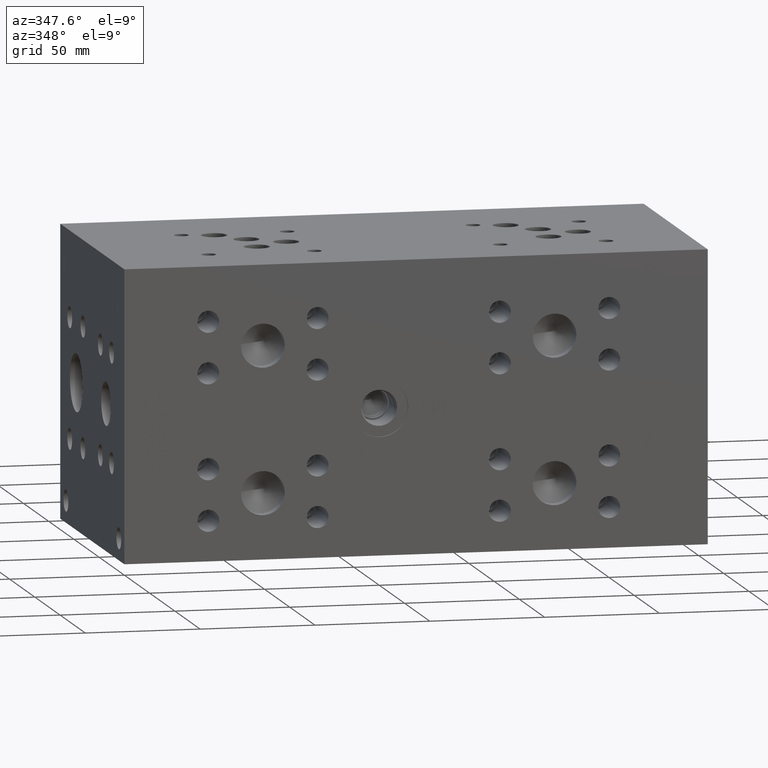
[diagram: clean part render]
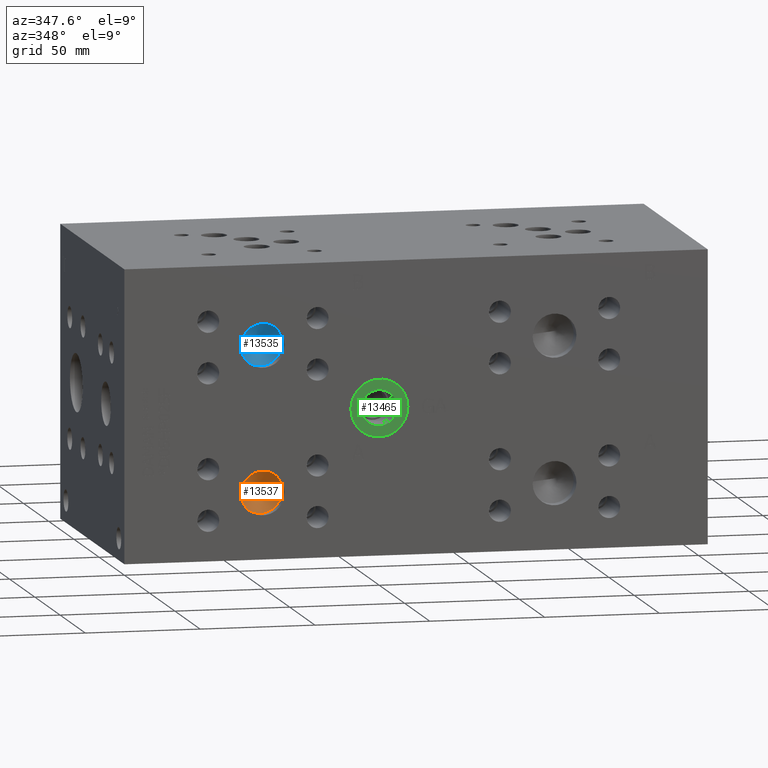
[diagram: same view with three faces highlighted in distinct colors, each labeled with its STEP entity id]
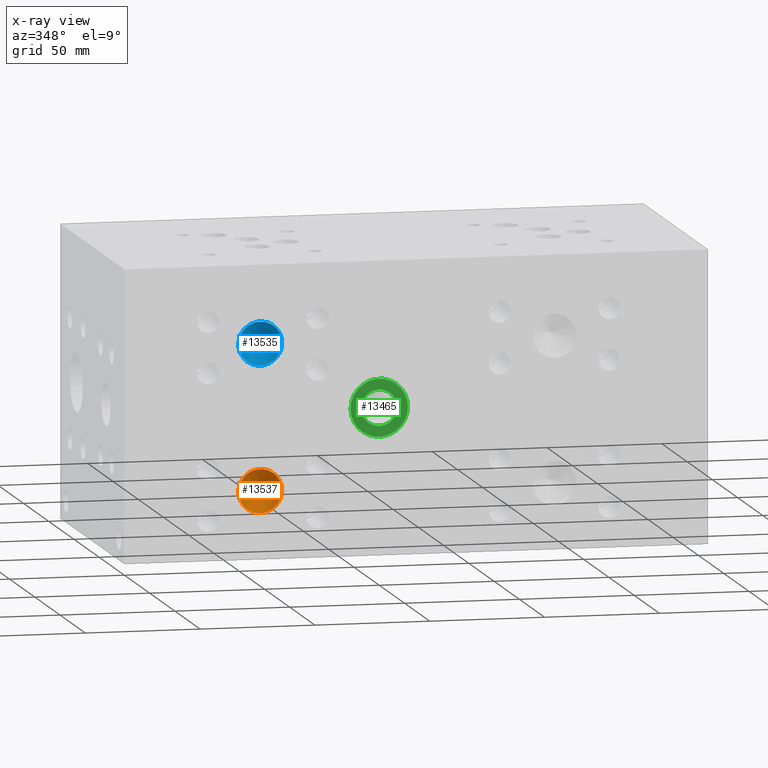
[diagram: x-ray of the same camera — body ghosted, the three highlighted faces saturated]
A machine part, auxiliary view with three faces highlighted in distinct colors.
The next image is the same camera in x-ray (body ghosted, the three faces saturated) — at least one of them is partly hidden behind the body in this view.
Their STEP definitions:

[orange] entity #13537 — the highlighted conical surface has half-angle 60 deg.
#169=CONICAL_SURFACE('',#14409,4.7625,1.0471975511966);
#486=CIRCLE('',#14410,9.525);
#487=CIRCLE('',#14411,9.525);
#1760=FACE_OUTER_BOUND('',#2590,.T.);
#2590=EDGE_LOOP('',(#11979,#11980,#11981,#11982));
#3821=LINE('',#23113,#5016);
#5016=VECTOR('',#17314,4.7625);
#6562=VERTEX_POINT('',#23109);
#6563=VERTEX_POINT('',#23110);
#6564=VERTEX_POINT('',#23112);
#8406=EDGE_CURVE('',#6562,#6563,#486,.T.);
#8407=EDGE_CURVE('',#6563,#6564,#3821,.T.);
#8408=EDGE_CURVE('',#6563,#6562,#487,.T.);
#11979=ORIENTED_EDGE('',*,*,#8406,.T.);
#11980=ORIENTED_EDGE('',*,*,#8407,.T.);
#11981=ORIENTED_EDGE('',*,*,#8407,.F.);
#11982=ORIENTED_EDGE('',*,*,#8408,.T.);
#13537=ADVANCED_FACE('',(#1760),#169,.F.);
#14409=AXIS2_PLACEMENT_3D('',#23108,#17310,#17311);
#14410=AXIS2_PLACEMENT_3D('',#23111,#17312,#17313);
#14411=AXIS2_PLACEMENT_3D('',#23114,#17315,#17316);
#17310=DIRECTION('center_axis',(0.,-1.,0.));
#17311=DIRECTION('ref_axis',(1.,0.,0.));
#17312=DIRECTION('center_axis',(0.,-1.,0.));
#17313=DIRECTION('ref_axis',(1.,0.,0.));
#17314=DIRECTION('',(0.866025403784439,0.5,1.06057523872491E-16));
#17315=DIRECTION('center_axis',(0.,-1.,0.));
#17316=DIRECTION('ref_axis',(1.,0.,0.));
#23108=CARTESIAN_POINT('Origin',(60.325,8.24889065701559,28.575));
#23109=CARTESIAN_POINT('',(69.85,5.49926,28.575));
#23110=CARTESIAN_POINT('',(50.8,5.49926,28.575));
#23111=CARTESIAN_POINT('Origin',(60.325,5.49926,28.575));
#23112=CARTESIAN_POINT('',(60.325,10.9985213140312,28.575));
#23113=CARTESIAN_POINT('',(55.5625,8.24889065701559,28.575));
#23114=CARTESIAN_POINT('Origin',(60.325,5.49926,28.575));

[blue] entity #13535 — the highlighted conical surface has half-angle 60 deg.
#168=CONICAL_SURFACE('',#14405,4.7625,1.0471975511966);
#484=CIRCLE('',#14406,9.525);
#485=CIRCLE('',#14407,9.525);
#1758=FACE_OUTER_BOUND('',#2588,.T.);
#2588=EDGE_LOOP('',(#11969,#11970,#11971,#11972));
#3819=LINE('',#23104,#5014);
#5014=VECTOR('',#17304,4.7625);
#6559=VERTEX_POINT('',#23100);
#6560=VERTEX_POINT('',#23101);
#6561=VERTEX_POINT('',#23103);
#8402=EDGE_CURVE('',#6559,#6560,#484,.T.);
#8403=EDGE_CURVE('',#6560,#6561,#3819,.T.);
#8404=EDGE_CURVE('',#6560,#6559,#485,.T.);
#11969=ORIENTED_EDGE('',*,*,#8402,.T.);
#11970=ORIENTED_EDGE('',*,*,#8403,.T.);
#11971=ORIENTED_EDGE('',*,*,#8403,.F.);
#11972=ORIENTED_EDGE('',*,*,#8404,.T.);
#13535=ADVANCED_FACE('',(#1758),#168,.F.);
#14405=AXIS2_PLACEMENT_3D('',#23099,#17300,#17301);
#14406=AXIS2_PLACEMENT_3D('',#23102,#17302,#17303);
#14407=AXIS2_PLACEMENT_3D('',#23105,#17305,#17306);
#17300=DIRECTION('center_axis',(0.,-1.,0.));
#17301=DIRECTION('ref_axis',(1.,0.,0.));
#17302=DIRECTION('center_axis',(0.,-1.,0.));
#17303=DIRECTION('ref_axis',(1.,0.,0.));
#17304=DIRECTION('',(0.866025403784439,0.5,1.06057523872491E-16));
#17305=DIRECTION('center_axis',(0.,-1.,0.));
#17306=DIRECTION('ref_axis',(1.,0.,0.));
#23099=CARTESIAN_POINT('Origin',(60.325,8.24889065701559,92.075));
#23100=CARTESIAN_POINT('',(69.85,5.49926,92.075));
#23101=CARTESIAN_POINT('',(50.8,5.49926,92.075));
#23102=CARTESIAN_POINT('Origin',(60.325,5.49926,92.075));
#23103=CARTESIAN_POINT('',(60.325,10.9985213140312,92.075));
#23104=CARTESIAN_POINT('',(55.5625,8.24889065701559,92.075));
#23105=CARTESIAN_POINT('Origin',(60.325,5.49926,92.075));

[green] entity #13465 — the highlighted planar face has unit normal (0, 1, 0).
#394=CIRCLE('',#14245,12.5095);
#395=CIRCLE('',#14246,12.5095);
#396=CIRCLE('',#14248,7.79780000000001);
#397=CIRCLE('',#14249,7.79780000000001);
#689=FACE_BOUND('',#2502,.T.);
#1085=PLANE('',#14247);
#1688=FACE_OUTER_BOUND('',#2501,.T.);
#2501=EDGE_LOOP('',(#11650,#11651));
#2502=EDGE_LOOP('',(#11652,#11653));
#6452=VERTEX_POINT('',#22778);
#6453=VERTEX_POINT('',#22780);
#6454=VERTEX_POINT('',#22784);
#6455=VERTEX_POINT('',#22785);
#8259=EDGE_CURVE('',#6452,#6453,#394,.T.);
#8260=EDGE_CURVE('',#6453,#6452,#395,.T.);
#8261=EDGE_CURVE('',#6454,#6455,#396,.T.);
#8262=EDGE_CURVE('',#6455,#6454,#397,.T.);
#11650=ORIENTED_EDGE('',*,*,#8260,.F.);
#11651=ORIENTED_EDGE('',*,*,#8259,.F.);
#11652=ORIENTED_EDGE('',*,*,#8261,.T.);
#11653=ORIENTED_EDGE('',*,*,#8262,.T.);
#13465=ADVANCED_FACE('',(#1688,#689),#1085,.F.);
#14245=AXIS2_PLACEMENT_3D('',#22781,#16927,#16928);
#14246=AXIS2_PLACEMENT_3D('',#22782,#16929,#16930);
#14247=AXIS2_PLACEMENT_3D('',#22783,#16931,#16932);
#14248=AXIS2_PLACEMENT_3D('',#22786,#16933,#16934);
#14249=AXIS2_PLACEMENT_3D('',#22787,#16935,#16936);
#16927=DIRECTION('center_axis',(0.,1.,0.));
#16928=DIRECTION('ref_axis',(1.,0.,0.));
#16929=DIRECTION('center_axis',(0.,1.,0.));
#16930=DIRECTION('ref_axis',(1.,0.,0.));
#16931=DIRECTION('center_axis',(0.,1.,0.));
#16932=DIRECTION('ref_axis',(0.,0.,1.));
#16933=DIRECTION('center_axis',(0.,1.,0.));
#16934=DIRECTION('ref_axis',(1.,0.,0.));
#16935=DIRECTION('center_axis',(0.,1.,0.));
#16936=DIRECTION('ref_axis',(1.,0.,0.));
#22778=CARTESIAN_POINT('',(98.6155,0.7874,63.5));
#22780=CARTESIAN_POINT('',(123.6345,0.7874,63.5));
#22781=CARTESIAN_POINT('Origin',(111.125,0.7874,63.5));
#22782=CARTESIAN_POINT('Origin',(111.125,0.7874,63.5));
#22783=CARTESIAN_POINT('Origin',(118.9228,0.7874,63.5));
#22784=CARTESIAN_POINT('',(118.9228,0.7874,63.5));
#22785=CARTESIAN_POINT('',(103.3272,0.787399999999998,63.5));
#22786=CARTESIAN_POINT('Origin',(111.125,0.7874,63.5));
#22787=CARTESIAN_POINT('Origin',(111.125,0.7874,63.5));